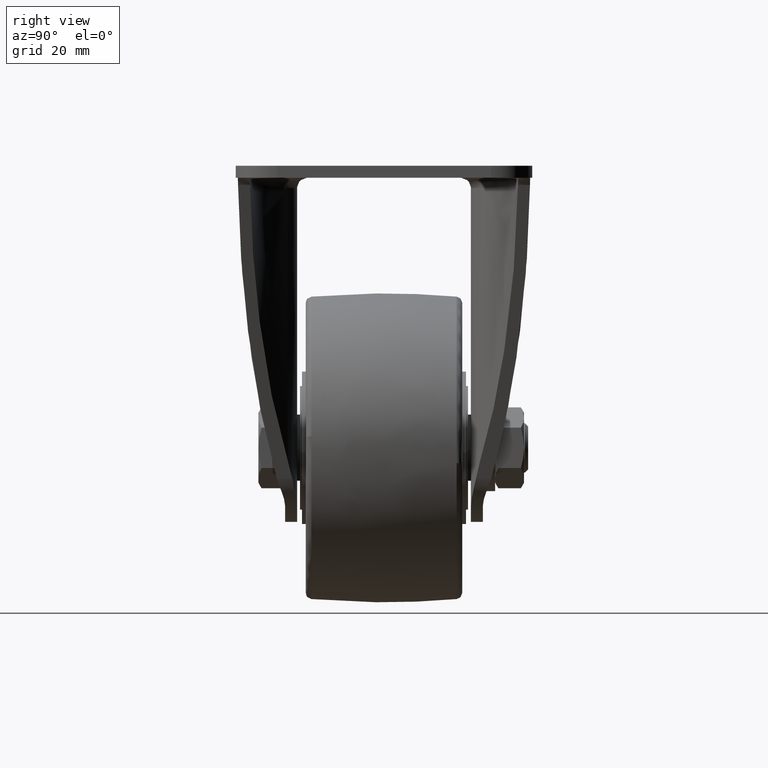
[diagram: clean part render]
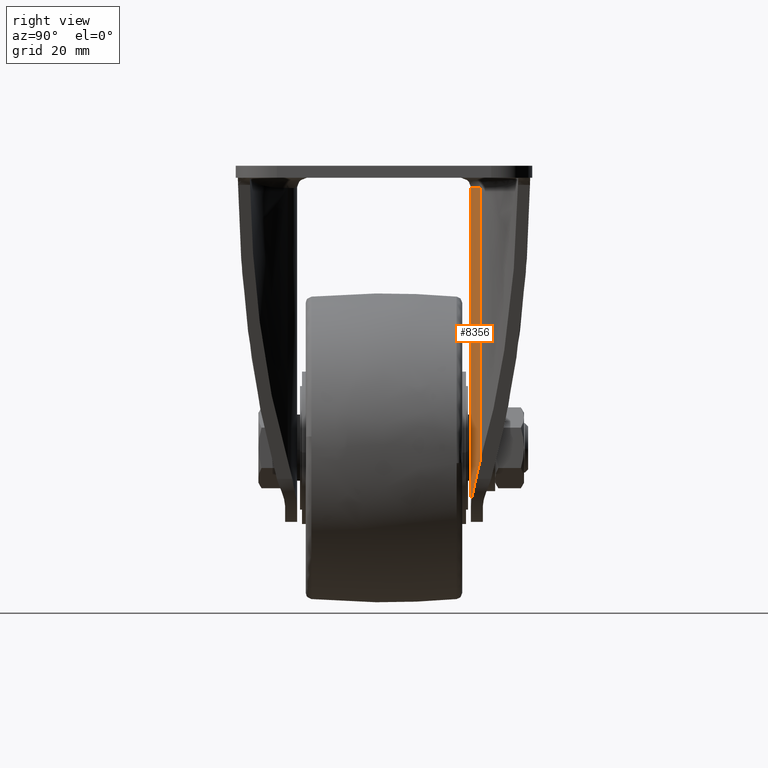
[diagram: same view with one face highlighted and labeled with its STEP entity id]
A machine part, right view. The second image highlights one B-rep face of the part: STEP entity #8356.
In plain terms, the highlighted face is a freeform B-spline surface patch.
Its self-contained STEP definition (entity closure, byte-faithful):
#7657=CARTESIAN_POINT('',(15.730752308236500,23.383727355105648,-5.400000000000000));
#7658=VERTEX_POINT('',#7657);
#7769=CARTESIAN_POINT('',(9.973043655194289,21.100000000000001,-5.400000000000000));
#7770=VERTEX_POINT('',#7769);
#7784=CARTESIAN_POINT('',(15.730752308236500,23.383727355105648,-5.400000000000000));
#7785=CARTESIAN_POINT('',(13.304804766926052,21.099999999999994,-5.400000000000001));
#7786=CARTESIAN_POINT('',(9.973043655194289,21.100000000000001,-5.400000000000000));
#7794=(BOUNDED_CURVE()B_SPLINE_CURVE(2,(#7784,#7785,#7786),.UNSPECIFIED.,.F.,.U.)CURVE()GEOMETRIC_REPRESENTATION_ITEM()QUASI_UNIFORM_CURVE()RATIONAL_B_SPLINE_CURVE((1.0,0.929550347162744,1.0))REPRESENTATION_ITEM(''));
#7795=EDGE_CURVE('',#7658,#7770,#7794,.T.);
#8126=CARTESIAN_POINT('',(14.298687000000101,22.299388244493549,-76.032942000000006));
#8127=VERTEX_POINT('',#8126);
#8128=CARTESIAN_POINT('',(9.973043655194289,21.100000000000001,-82.704393452130105));
#8129=VERTEX_POINT('',#8128);
#8130=CARTESIAN_POINT('',(14.298687000000051,22.299388244493560,-76.032941999999977));
#8131=CARTESIAN_POINT('',(14.095655097031440,22.177420329866329,-76.673384908146915));
#8132=CARTESIAN_POINT('',(13.852419587537771,22.042893064963351,-77.292333555341088));
#8133=CARTESIAN_POINT('',(13.286605158730870,21.774826110222641,-78.493338492607819));
#8134=CARTESIAN_POINT('',(12.964040795915359,21.641141182565100,-79.075370442533753));
#8135=CARTESIAN_POINT('',(12.507680418014820,21.490952032633992,-79.781680992938774));
#8136=CARTESIAN_POINT('',(12.413891604429869,21.461826581299981,-79.921612247732810));
#8137=CARTESIAN_POINT('',(12.222125151092969,21.406076165098341,-80.197580997393231));
#8138=CARTESIAN_POINT('',(12.124024788297200,21.379409985354641,-80.333810192835841));
#8139=CARTESIAN_POINT('',(11.823063242104190,21.303644980130489,-80.737305803986317));
#8140=CARTESIAN_POINT('',(11.613551666343920,21.258768580955259,-80.999387458657964));
#8141=CARTESIAN_POINT('',(11.176502438318719,21.183699813365500,-81.509932023654287));
#8142=CARTESIAN_POINT('',(10.948966235252570,21.153496794950890,-81.758394757989294));
#8143=CARTESIAN_POINT('',(10.475245021916420,21.111654846072131,-82.241683655687794));
#8144=CARTESIAN_POINT('',(10.229063021882650,21.100000000000001,-82.476510286411568));
#8145=CARTESIAN_POINT('',(9.973043655194278,21.100000000000001,-82.704393452130091));
#8146=B_SPLINE_CURVE_WITH_KNOTS('',3,(#8130,#8131,#8132,#8133,#8134,#8135,#8136,#8137,#8138,#8139,#8140,#8141,#8142,#8143,#8144,#8145),.UNSPECIFIED.,.F.,.U.,(4,2,2,2,2,2,2,4),(0.0,0.250000000000000,0.500000000000000,0.562500000000000,0.625000000000000,0.750000000000000,0.875000000000000,1.0),.UNSPECIFIED.);
#8147=EDGE_CURVE('',#8127,#8129,#8146,.T.);
#8210=CARTESIAN_POINT('',(15.730752308236500,23.383727355105648,-71.515642962983094));
#8211=VERTEX_POINT('',#8210);
#8225=CARTESIAN_POINT('',(14.298687000000051,22.299388244493549,-76.032942000000133));
#8226=CARTESIAN_POINT('',(15.073023247360570,22.764557392444836,-73.590379943359949));
#8227=CARTESIAN_POINT('',(15.730752308236490,23.383727355105648,-71.515642962983136));
#8235=(BOUNDED_CURVE()B_SPLINE_CURVE(2,(#8225,#8226,#8227),.UNSPECIFIED.,.F.,.U.)CURVE()GEOMETRIC_REPRESENTATION_ITEM()QUASI_UNIFORM_CURVE()RATIONAL_B_SPLINE_CURVE((1.0,0.994267507840662,1.0))REPRESENTATION_ITEM(''));
#8236=EDGE_CURVE('',#8127,#8211,#8235,.T.);
#8322=CARTESIAN_POINT('',(15.730752308236500,23.383727355105648,-71.515642962983094));
#8323=CARTESIAN_POINT('',(15.730752308236500,23.383727355105648,-5.400000000000000));
#8324=QUASI_UNIFORM_CURVE('',1,(#8322,#8323),.UNSPECIFIED.,.F.,.U.);
#8325=EDGE_CURVE('',#8211,#7658,#8324,.T.);
#8331=CARTESIAN_POINT('',(15.950432473430732,23.598235609953427,-84.637003288433391));
#8332=CARTESIAN_POINT('',(15.950432473430732,23.598235609953427,-3.419074917789160));
#8333=CARTESIAN_POINT('',(13.355080843113052,20.969627487166225,-84.637003288433334));
#8334=CARTESIAN_POINT('',(13.355080843113052,20.969627487166225,-3.419074917789161));
#8335=CARTESIAN_POINT('',(9.663615724022554,21.105701080172885,-84.637003288433348));
#8336=CARTESIAN_POINT('',(9.663615724022554,21.105701080172885,-3.419074917789161));
#8344=(BOUNDED_SURFACE()B_SPLINE_SURFACE(1,2,((#8331,#8333,#8335),(#8332,#8334,#8336)),.UNSPECIFIED.,.F.,.F.,.U.)B_SPLINE_SURFACE_WITH_KNOTS((2,2),(3,3),(0.0,81.217928370644231),(0.0,7.061585645088339),.UNSPECIFIED.)GEOMETRIC_REPRESENTATION_ITEM()RATIONAL_B_SPLINE_SURFACE(((0.999478268164287,0.911144850594864,0.991249598011532),(0.999478268164287,0.911144850594864,0.991249598011532)))REPRESENTATION_ITEM('')SURFACE());
#8345=ORIENTED_EDGE('',*,*,#8325,.T.);
#8346=ORIENTED_EDGE('',*,*,#7795,.T.);
#8347=CARTESIAN_POINT('',(9.973043655194289,21.100000000000001,-82.704393452130105));
#8348=CARTESIAN_POINT('',(9.973043655194289,21.100000000000001,-5.400000000000000));
#8349=QUASI_UNIFORM_CURVE('',1,(#8347,#8348),.UNSPECIFIED.,.F.,.U.);
#8350=EDGE_CURVE('',#8129,#7770,#8349,.T.);
#8351=ORIENTED_EDGE('',*,*,#8350,.F.);
#8352=ORIENTED_EDGE('',*,*,#8147,.F.);
#8353=ORIENTED_EDGE('',*,*,#8236,.T.);
#8354=EDGE_LOOP('',(#8345,#8346,#8351,#8352,#8353));
#8355=FACE_OUTER_BOUND('',#8354,.T.);
#8356=ADVANCED_FACE('',(#8355),#8344,.T.);